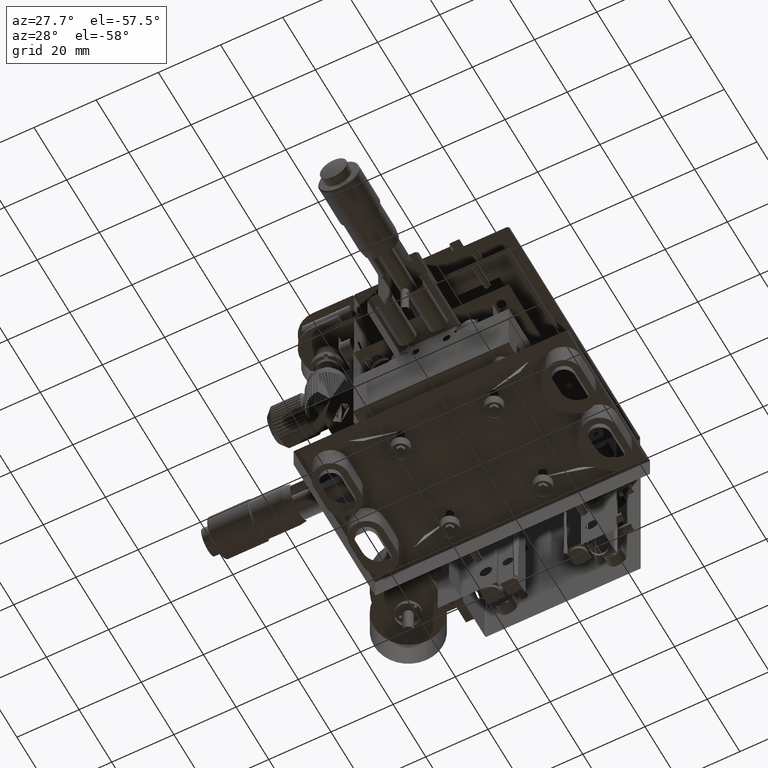
[diagram: clean part render]
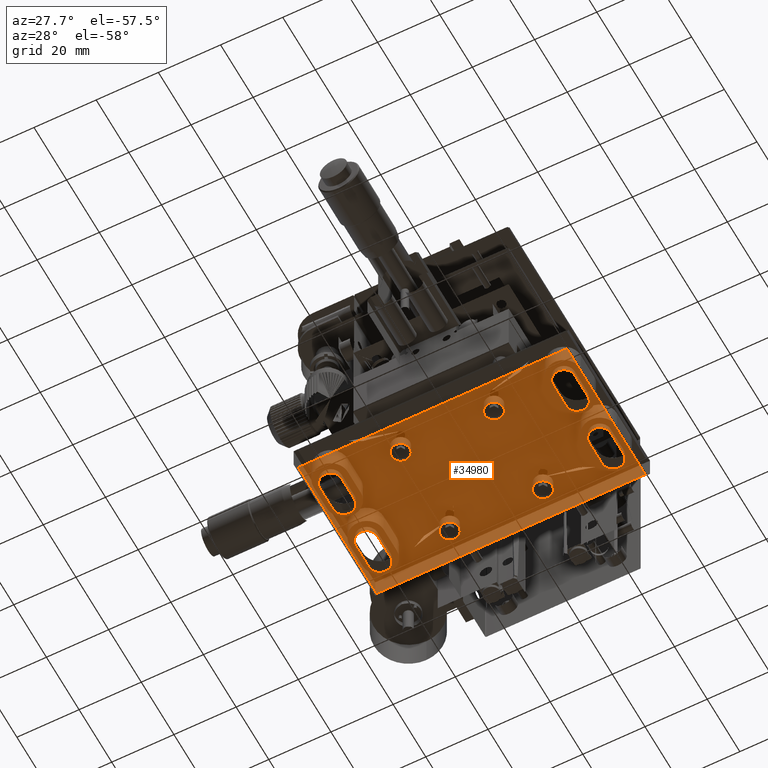
[diagram: same view with one face highlighted and labeled with its STEP entity id]
A machine part, auxiliary view. The second image highlights one B-rep face of the part: STEP entity #34980.
In plain terms, the highlighted face is a freeform B-spline surface patch.
Its self-contained STEP definition (entity closure, byte-faithful):
#55 = CARTESIAN_POINT ( 'NONE',  ( -21.29640644856136689, -14.99374703652354057, -4.500000000000000000 ) ) ;
#338 = CARTESIAN_POINT ( 'NONE',  ( -17.05377513740047135, 15.56881495829157380, -4.500000000000000000 ) ) ;
#371 = CARTESIAN_POINT ( 'NONE',  ( -16.83695524647980690, -14.10671455173036470, -4.500000000000000000 ) ) ;
#491 = CARTESIAN_POINT ( 'NONE',  ( 30.24058469547346206, 7.262136286117500283, -4.500000000000000000 ) ) ;
#664 = CARTESIAN_POINT ( 'NONE',  ( -20.23690821647150884, 14.48498896527074109, -4.500000000000000888 ) ) ;
#781 = B_SPLINE_CURVE_WITH_KNOTS ( 'NONE', 3,
 ( #21240, #2636, #37380, #12709, #54576, #13970, #48441, #48127, #9118, #54263, #53607, #14919, #59463, #23395, #28577, #43176, #58194, #64003 ),
 .UNSPECIFIED., .F., .F.,
 ( 4, 2, 2, 2, 2, 2, 2, 2, 4 ),
 ( 0.000000000000000000, 0.1249999999999998890, 0.2499999999999998890, 0.3749999999999998890, 0.4999999999999998890, 0.6249999999999998890, 0.7499999999999998890, 0.8749999999999998890, 1.000000000000000000 ),
 .UNSPECIFIED. ) ;
#2163 = ORIENTED_EDGE ( 'NONE', *, *, #22687, .T. ) ;
#2218 = ORIENTED_EDGE ( 'NONE', *, *, #22266, .T. ) ;
#2571 = CARTESIAN_POINT ( 'NONE',  ( -21.29641582465907845, -10.18854435466275099, -4.500000000000001776 ) ) ;
#2636 = CARTESIAN_POINT ( 'NONE',  ( 7.543628209608413293, 17.80665702433265452, -4.500000000000001776 ) ) ;
#2684 = CARTESIAN_POINT ( 'NONE',  ( -45.45637179039159292, -12.59115038357209926, -4.500000000000000000 ) ) ;
#2714 = CARTESIAN_POINT ( 'NONE',  ( -44.10308512069971698, 20.21189313059785775, -4.500000000000000000 ) ) ;
#2967 = CARTESIAN_POINT ( 'NONE',  ( -45.01235461151429007, -2.822987477641923704, -4.500000000000000000 ) ) ;
#3110 = VERTEX_POINT ( 'NONE', #7494 ) ;
#3206 = CARTESIAN_POINT ( 'NONE',  ( -20.97193088420871732, -9.971746090047332700, -4.500000000000000000 ) ) ;
#3214 = B_SPLINE_CURVE_WITH_KNOTS ( 'NONE', 3,
 ( #9356, #14523, #29134, #18431, #24584, #33999, #34332, #8381, #54182, #14202, #3829, #28173, #23619, #38247, #39199, #19385, #19711, #44395 ),
 .UNSPECIFIED., .F., .F.,
 ( 4, 2, 2, 2, 2, 2, 2, 2, 4 ),
 ( 0.000000000000000000, 0.1250000000000000000, 0.2500000000000000000, 0.3750000000000000000, 0.5000000000000000000, 0.6250000000000000000, 0.7500000000000000000, 0.8750000000000000000, 1.000000000000000000 ),
 .UNSPECIFIED. ) ;
#3607 = CARTESIAN_POINT ( 'NONE',  ( -40.18820888443311645, -1.535167562497468330, -4.500000000000001776 ) ) ;
#3608 = CARTESIAN_POINT ( 'NONE',  ( -43.72453469645750346, -15.64713320458383272, -4.500000000000001776 ) ) ;
#3702 = CARTESIAN_POINT ( 'NONE',  ( -39.80965846011498144, 6.605806102214055286, -4.500000000000001776 ) ) ;
#3725 = CARTESIAN_POINT ( 'NONE',  ( 29.54362820960840708, -4.127038853030037480, -4.500000000000000000 ) ) ;
#3829 = CARTESIAN_POINT ( 'NONE',  ( 33.95424933027374692, 20.82002352289435265, -4.500000000000000888 ) ) ;
#3892 = EDGE_CURVE ( 'NONE', #40954, #29541, #59284, .T. ) ;
#4035 = CARTESIAN_POINT ( 'NONE',  ( -44.75941530452961103, 7.262136286124892592, -4.500000000000001776 ) ) ;
#4350 = CARTESIAN_POINT ( 'NONE',  ( -41.49227626657508239, 5.908856246353873409, -4.500000000000000000 ) ) ;
#4372 = CARTESIAN_POINT ( 'NONE',  ( 32.13300201463312789, -1.179964226545440864, -4.500000000000001776 ) ) ;
#4447 = CARTESIAN_POINT ( 'NONE',  ( 7.924230547051965168, 15.89327451473756447, -4.499999999999999112 ) ) ;
#4689 = CARTESIAN_POINT ( 'NONE',  ( 32.57953268587812090, -1.091157013522839447, -4.500000000000000000 ) ) ;
#4925 = ORIENTED_EDGE ( 'NONE', *, *, #31252, .T. ) ;
#5009 = B_SPLINE_CURVE_WITH_KNOTS ( 'NONE', 1,
 ( #50263, #55444 ),
 .UNSPECIFIED., .F., .F.,
 ( 2, 2 ),
 ( 0.000000000000000000, 1.000000000000000000 ),
 .UNSPECIFIED. ) ;
#5080 = CARTESIAN_POINT ( 'NONE',  ( 13.54362820960841240, 17.01104220846116277, -4.500000000000000888 ) ) ;
#5605 = CARTESIAN_POINT ( 'NONE',  ( -17.05377513737335349, -14.43118504169189187, -4.500000000000000000 ) ) ;
#5619 = CARTESIAN_POINT ( 'NONE',  ( -45.45637179039159292, -4.591150383572129456, -4.500000000000000000 ) ) ;
#5720 = CARTESIAN_POINT ( 'NONE',  ( 31.27546530358669941, 6.352866795376248099, -4.500000000000001776 ) ) ;
#5800 = B_SPLINE_CURVE_WITH_KNOTS ( 'NONE', 1,
 ( #64168, #43993 ),
 .UNSPECIFIED., .F., .F.,
 ( 2, 2 ),
 ( 0.000000000000000000, 1.000000000000000000 ),
 .UNSPECIFIED. ) ;
#5819 = CARTESIAN_POINT ( 'NONE',  ( -47.65637179039159577, 26.40884961642790074, -4.500000000000000000 ) ) ;
#5945 = CARTESIAN_POINT ( 'NONE',  ( 36.54362820960839286, -12.59115038357209926, -4.500000000000000000 ) ) ;
#6044 = CARTESIAN_POINT ( 'NONE',  ( 29.54362820960841063, 8.944703433582350982, -4.500000000000001776 ) ) ;
#6076 = VERTEX_POINT ( 'NONE', #12566 ) ;
#6276 = CARTESIAN_POINT ( 'NONE',  ( 30.89692425543100285, -15.39418452152395034, -4.500000000000000000 ) ) ;
#7128 = CARTESIAN_POINT ( 'NONE',  ( 7.543628209608428392, -6.591150383572131233, -4.499999999999997335 ) ) ;
#7494 = CARTESIAN_POINT ( 'NONE',  ( 29.54362820960840352, 9.408849616427881202, -4.500000000000000000 ) ) ;
#7854 = CARTESIAN_POINT ( 'NONE',  ( -45.36756457832144918, -13.50176057085591452, -4.500000000000000888 ) ) ;
#8126 = CARTESIAN_POINT ( 'NONE',  ( -22.45637179039160358, 17.40884961642789719, -4.500000000000000000 ) ) ;
#8173 = CARTESIAN_POINT ( 'NONE',  ( -44.75940592845264376, -2.444446429487255212, -4.500000000000000000 ) ) ;
#8232 = CARTESIAN_POINT ( 'NONE',  ( 29.54362820960840352, -12.59115038357209926, -4.500000000000000000 ) ) ;
#8240 = CARTESIAN_POINT ( 'NONE',  ( -39.80966783625519412, 20.21188375439292528, -4.500000000000000888 ) ) ;
#8287 = CARTESIAN_POINT ( 'NONE',  ( 29.98764538858761242, -2.822987477489923958, -4.500000000000000000 ) ) ;
#8381 = CARTESIAN_POINT ( 'NONE',  ( 32.13300201465552419, 20.82003577346389278, -4.500000000000001776 ) ) ;
#8402 = CARTESIAN_POINT ( 'NONE',  ( -18.67583536425554058, -9.667289732464837471, -4.500000000000000000 ) ) ;
#8490 = CARTESIAN_POINT ( 'NONE',  ( -39.15333765238357699, -14.73785433768522957, -4.500000000000000000 ) ) ;
#8560 = CARTESIAN_POINT ( 'NONE',  ( -38.90040785074243956, 19.17702345582573642, -4.500000000000000000 ) ) ;
#8677 = CARTESIAN_POINT ( 'NONE',  ( 13.16304475350332659, 15.89328544830155998, -4.499999999999997335 ) ) ;
#8729 = CARTESIAN_POINT ( 'NONE',  ( -17.94080762233716086, -9.971733839611651717, -4.500000000000001776 ) ) ;
#8754 = CARTESIAN_POINT ( 'NONE',  ( -16.45637179039160714, 17.80669167660905217, -4.500000000000000888 ) ) ;
#8868 = VERTEX_POINT ( 'NONE', #5619 ) ;
#9118 = CARTESIAN_POINT ( 'NONE',  ( 10.14583680822025435, 20.40884298658655638, -4.499999999999999112 ) ) ;
#9131 = CARTESIAN_POINT ( 'NONE',  ( -39.15332827629382706, -2.444437053184417064, -4.500000000000001776 ) ) ;
#9213 = CARTESIAN_POINT ( 'NONE',  ( -45.45637179039159292, 17.40884961642789719, -4.500000000000000000 ) ) ;
#9253 = CARTESIAN_POINT ( 'NONE',  ( 33.95424933020238001, -1.179976477083802378, -4.500000000000000000 ) ) ;
#9321 = CARTESIAN_POINT ( 'NONE',  ( 12.38367224381515364, 15.00624358748539677, -4.500000000000000888 ) ) ;
#9356 = CARTESIAN_POINT ( 'NONE',  ( 29.54362820960840352, 17.40884961642789719, -4.500000000000000000 ) ) ;
#9927 = VERTEX_POINT ( 'NONE', #55250 ) ;
#10149 = VERTEX_POINT ( 'NONE', #64272 ) ;
#10283 = CARTESIAN_POINT ( 'NONE',  ( 33.95425440448980936, 5.997663459388793861, -4.500000000000000888 ) ) ;
#10486 = CARTESIAN_POINT ( 'NONE',  ( -21.85897781934116324, -14.43119441773999689, -4.500000000000001776 ) ) ;
#10926 = CARTESIAN_POINT ( 'NONE',  ( 36.54362820960839286, 9.408849616427881202, -4.500000000000000000 ) ) ;
#11024 = FACE_BOUND ( 'NONE', #28595, .T. ) ;
#11131 = EDGE_LOOP ( 'NONE', ( #34036, #55349 ) ) ;
#11306 = CARTESIAN_POINT ( 'NONE',  ( 7.543628209608430168, 17.40884961642789719, -4.500000000000000000 ) ) ;
#11486 = EDGE_CURVE ( 'NONE', #47768, #40954, #33404, .T. ) ;
#11851 = EDGE_CURVE ( 'NONE', #32700, #8868, #31047, .T. ) ;
#12147 = CARTESIAN_POINT ( 'NONE',  ( -38.45637179039159292, 17.40884961642789719, -4.500000000000000000 ) ) ;
#12368 = CARTESIAN_POINT ( 'NONE',  ( -22.07576945294807302, 15.89327451478361120, -4.500000000000000000 ) ) ;
#12566 = CARTESIAN_POINT ( 'NONE',  ( -38.45637179039159292, -12.59115038357209926, -4.500000000000000000 ) ) ;
#12709 = CARTESIAN_POINT ( 'NONE',  ( 7.924211665671169413, 18.92441378451401235, -4.500000000000000000 ) ) ;
#12792 = CARTESIAN_POINT ( 'NONE',  ( -39.15332827622221856, 19.55556294676873108, -4.500000000000001776 ) ) ;
#12824 = CARTESIAN_POINT ( 'NONE',  ( 36.54362820960839286, 17.40884961642789719, -4.500000000000000000 ) ) ;
#12928 = EDGE_LOOP ( 'NONE', ( #12929, #40892 ) ) ;
#12929 = ORIENTED_EDGE ( 'NONE', *, *, #49070, .T. ) ;
#13039 = CARTESIAN_POINT ( 'NONE',  ( -45.45637179039160003, -13.05529656643001069, -4.500000000000000888 ) ) ;
#13095 = VERTEX_POINT ( 'NONE', #44391 ) ;
#13378 = CARTESIAN_POINT ( 'NONE',  ( -22.45637179039160358, -12.59115038357209926, -4.500000000000000000 ) ) ;
#13420 = CARTESIAN_POINT ( 'NONE',  ( -42.42046731418577821, 20.90884298648952822, -4.500000000000000888 ) ) ;
#13469 = CARTESIAN_POINT ( 'NONE',  ( 36.09959214925758175, -2.822976544300350277, -4.500000000000000000 ) ) ;
#13670 = CARTESIAN_POINT ( 'NONE',  ( -45.45637179039160714, -4.127038853124053830, -4.500000000000000888 ) ) ;
#13765 = CARTESIAN_POINT ( 'NONE',  ( -38.54519788396154212, 8.498228495751504852, -4.500000000000000000 ) ) ;
#13852 = CARTESIAN_POINT ( 'NONE',  ( 8.141022180641238393, 15.56880558224580646, -4.500000000000001776 ) ) ;
#13970 = CARTESIAN_POINT ( 'NONE',  ( 8.703584175436875014, 19.81145564540345561, -4.500000000000000000 ) ) ;
#14042 = VERTEX_POINT ( 'NONE', #18442 ) ;
#14078 = CARTESIAN_POINT ( 'NONE',  ( -45.36756457832144918, 8.498239429156416946, -4.500000000000000888 ) ) ;
#14098 = CARTESIAN_POINT ( 'NONE',  ( 36.54362820960839286, -4.591150383572140115, -4.500000000000000000 ) ) ;
#14202 = CARTESIAN_POINT ( 'NONE',  ( 33.50772373337951393, 20.90885624636936058, -4.500000000000000000 ) ) ;
#14383 = CARTESIAN_POINT ( 'NONE',  ( -18.67583029012051909, -15.51502328513624995, -4.500000000000000000 ) ) ;
#14401 = CARTESIAN_POINT ( 'NONE',  ( -47.65637179039159577, 26.40884961642790074, -4.500000000000000000 ) ) ;
#14420 = CARTESIAN_POINT ( 'NONE',  ( 35.19033216380291407, -1.788116245621302669, -4.500000000000000000 ) ) ;
#14490 = CARTESIAN_POINT ( 'NONE',  ( 7.619748677097119227, 16.62832412392770465, -4.499999999999998224 ) ) ;
#14523 = CARTESIAN_POINT ( 'NONE',  ( 29.54362820960840352, 17.87296114695766036, -4.500000000000000000 ) ) ;
#14694 = CARTESIAN_POINT ( 'NONE',  ( -17.94081269647218946, -15.21055467707570763, -4.500000000000000000 ) ) ;
#14806 = CARTESIAN_POINT ( 'NONE',  ( 7.543628209608410629, 17.01100755629279604, -4.500000000000000888 ) ) ;
#14919 = CARTESIAN_POINT ( 'NONE',  ( 12.05919237778226005, 20.02826616029115669, -4.500000000000000000 ) ) ;
#15335 = CARTESIAN_POINT ( 'NONE',  ( 7.543628209608430168, -12.59115038357209926, -4.500000000000000000 ) ) ;
#15673 = CARTESIAN_POINT ( 'NONE',  ( 31.27546530358669941, -15.64713320458664292, -4.500000000000001776 ) ) ;
#15767 = CARTESIAN_POINT ( 'NONE',  ( 34.81178604128261611, 6.352879045887960707, -4.499999999999999112 ) ) ;
#15866 = VERTEX_POINT ( 'NONE', #39379 ) ;
#16203 = EDGE_LOOP ( 'NONE', ( #43481, #4925 ) ) ;
#16237 = B_SPLINE_CURVE_WITH_KNOTS ( 'NONE', 1,
 ( #34788, #50745 ),
 .UNSPECIFIED., .F., .F.,
 ( 2, 2 ),
 ( 0.000000000000000000, 1.000000000000000000 ),
 .UNSPECIFIED. ) ;
#16639 = CARTESIAN_POINT ( 'NONE',  ( 29.63243542167856148, -13.50176057081562675, -4.500000000000001776 ) ) ;
#16795 = EDGE_LOOP ( 'NONE', ( #51872, #24044, #39424, #42994 ) ) ;
#17164 = CARTESIAN_POINT ( 'NONE',  ( 13.54362820960840530, -6.591150383572131233, -4.499999999999997335 ) ) ;
#17499 = CARTESIAN_POINT ( 'NONE',  ( -22.45637179039160358, -12.59115038357209926, -4.500000000000000000 ) ) ;
#17585 = CARTESIAN_POINT ( 'NONE',  ( -42.42046731416365901, -1.091157013522843000, -4.500000000000000000 ) ) ;
#17651 = CARTESIAN_POINT ( 'NONE',  ( -45.45637179039159292, 17.40884961642789719, -4.500000000000000000 ) ) ;
#17898 = CARTESIAN_POINT ( 'NONE',  ( -42.86699798529045324, -1.179964226545439754, -4.500000000000001776 ) ) ;
#18156 = CARTESIAN_POINT ( 'NONE',  ( -22.07578833425392872, 18.92441378460268453, -4.500000000000000000 ) ) ;
#18214 = CARTESIAN_POINT ( 'NONE',  ( -38.45637179039164266, -13.05526191402021396, -4.500000000000000888 ) ) ;
#18340 = EDGE_CURVE ( 'NONE', #63636, #13095, #5800, .T. ) ;
#18431 = CARTESIAN_POINT ( 'NONE',  ( 29.98764538852158523, 19.17701252236309628, -4.500000000000000000 ) ) ;
#18442 = CARTESIAN_POINT ( 'NONE',  ( 36.54362820960839286, 17.40884961642789719, -4.500000000000000000 ) ) ;
#18475 = CARTESIAN_POINT ( 'NONE',  ( -22.45637179039157161, 17.80665702442479059, -4.500000000000000888 ) ) ;
#18593 = CARTESIAN_POINT ( 'NONE',  ( 29.54362820960840352, -4.591150383572140115, -4.500000000000000000 ) ) ;
#18622 = CARTESIAN_POINT ( 'NONE',  ( -42.86699291092346442, 5.997675709902789087, -4.500000000000000000 ) ) ;
#18690 = EDGE_CURVE ( 'NONE', #59496, #10149, #42932, .T. ) ;
#18716 = CARTESIAN_POINT ( 'NONE',  ( 7.543628209608430168, 17.40884961642789719, -4.500000000000000000 ) ) ;
#18789 = CARTESIAN_POINT ( 'NONE',  ( -17.61633713219125497, 19.81144626929454233, -4.500000000000000000 ) ) ;
#18974 = CARTESIAN_POINT ( 'NONE',  ( 36.54362820960839286, -12.59115038357209926, -4.500000000000000000 ) ) ;
#19035 = CARTESIAN_POINT ( 'NONE',  ( 13.54362820960839819, 17.40884961642789719, -4.500000000000000000 ) ) ;
#19166 = CARTESIAN_POINT ( 'NONE',  ( -40.18821395869026247, -15.64712095409962878, -4.500000000000000000 ) ) ;
#19385 = CARTESIAN_POINT ( 'NONE',  ( 36.45482099753822780, 18.31945980369316729, -4.500000000000000888 ) ) ;
#19558 = CARTESIAN_POINT ( 'NONE',  ( -20.23690821641724469, -15.51501103475176713, -4.500000000000000000 ) ) ;
#19600 = CARTESIAN_POINT ( 'NONE',  ( 29.63245430305016370, -3.680529263098749837, -4.500000000000000888 ) ) ;
#19711 = CARTESIAN_POINT ( 'NONE',  ( 36.54362820960839286, 17.87299579926722259, -4.500000000000000888 ) ) ;
#19782 = FACE_BOUND ( 'NONE', #12928, .T. ) ;
#19857 = CARTESIAN_POINT ( 'NONE',  ( 13.54362820960839819, -12.59115038357209926, -4.500000000000000000 ) ) ;
#19904 =( BOUNDED_CURVE ( )  B_SPLINE_CURVE ( 3, ( #37293, #27230, #61695, #41524 ),
 .UNSPECIFIED., .F., .F. ) 
 B_SPLINE_CURVE_WITH_KNOTS ( ( 4, 4 ),
 ( 0.000000000000000000, 1.000000000000000000 ),
 .UNSPECIFIED. ) 
 CURVE ( )  GEOMETRIC_REPRESENTATION_ITEM ( )  RATIONAL_B_SPLINE_CURVE ( ( 1.000000000000000000, 0.3333333333333329818, 0.3333333333333329818, 1.000000000000000000 ) ) 
 REPRESENTATION_ITEM ( '' )  );
#20117 = B_SPLINE_CURVE_WITH_KNOTS ( 'NONE', 1,
 ( #27420, #23511 ),
 .UNSPECIFIED., .F., .F.,
 ( 2, 2 ),
 ( 0.000000000000000000, 1.000000000000000000 ),
 .UNSPECIFIED. ) ;
#20168 = CARTESIAN_POINT ( 'NONE',  ( -16.45637179039160003, 17.40884961642789719, -4.500000000000000000 ) ) ;
#20219 = VERTEX_POINT ( 'NONE', #60287 ) ;
#20225 = CARTESIAN_POINT ( 'NONE',  ( 29.54362820960840708, -13.05529656638972469, -4.500000000000001776 ) ) ;
#20393 = EDGE_CURVE ( 'NONE', #36216, #14042, #3214, .T. ) ;
#20491 = CARTESIAN_POINT ( 'NONE',  ( -20.97193595850231773, 14.78943307251733508, -4.500000000000002665 ) ) ;
#20521 = CARTESIAN_POINT ( 'NONE',  ( -19.85416319174158417, -15.59115701340815896, -4.500000000000000000 ) ) ;
#20641 = CARTESIAN_POINT ( 'NONE',  ( 36.45480211608776955, 8.498228495860491449, -4.499999999999999112 ) ) ;
#20746 = FACE_BOUND ( 'NONE', #56031, .T. ) ;
#20844 = CARTESIAN_POINT ( 'NONE',  ( -22.45637179039160358, -12.59115038357209926, -4.500000000000000000 ) ) ;
#21240 = CARTESIAN_POINT ( 'NONE',  ( 7.543628209608430168, 17.40884961642789719, -4.500000000000000000 ) ) ;
#21827 = EDGE_CURVE ( 'NONE', #43019, #39849, #37930, .T. ) ;
#22249 = CARTESIAN_POINT ( 'NONE',  ( 36.54362820960839286, 9.408849616427881202, -4.500000000000000000 ) ) ;
#22266 = EDGE_CURVE ( 'NONE', #34610, #59496, #34696, .T. ) ;
#22311 = EDGE_CURVE ( 'NONE', #6076, #32700, #42406, .T. ) ;
#22389 = CARTESIAN_POINT ( 'NONE',  ( -19.05858038915702224, -9.591143753714893805, -4.500000000000001776 ) ) ;
#22450 = B_SPLINE_CURVE_WITH_KNOTS ( 'NONE', 3,
 ( #8126, #18475, #49036, #18156, #24301, #28852, #37973, #57831, #48714, #58780, #48078, #44109, #18789, #62992, #38291, #58152, #8754, #52623 ),
 .UNSPECIFIED., .F., .F.,
 ( 4, 2, 2, 2, 2, 2, 2, 2, 4 ),
 ( 0.000000000000000000, 0.1250000000000000000, 0.2500000000000000000, 0.3750000000000000000, 0.5000000000000000000, 0.6250000000000000000, 0.7500000000000000000, 0.8750000000000000000, 1.000000000000000000 ),
 .UNSPECIFIED. ) ;
#22687 = EDGE_CURVE ( 'NONE', #3110, #36216, #53236, .T. ) ;
#23007 = CARTESIAN_POINT ( 'NONE',  ( -16.45637179039160003, -12.59115038357209926, -4.500000000000000000 ) ) ;
#23097 = CARTESIAN_POINT ( 'NONE',  ( -44.10308512063639341, -1.788106869351199668, -4.500000000000001776 ) ) ;
#23395 = CARTESIAN_POINT ( 'NONE',  ( 12.94623423859311728, 19.24889365057649115, -4.500000000000000000 ) ) ;
#23408 = CARTESIAN_POINT ( 'NONE',  ( -38.54517900246180062, -3.680540196288325294, -4.500000000000000888 ) ) ;
#23461 = ORIENTED_EDGE ( 'NONE', *, *, #11851, .T. ) ;
#23477 = CARTESIAN_POINT ( 'NONE',  ( -38.45637179039164266, 17.87299579915975656, -4.500000000000000888 ) ) ;
#23511 = CARTESIAN_POINT ( 'NONE',  ( 38.74362820960839571, 26.40884961642790074, -4.500000000000000000 ) ) ;
#23619 = CARTESIAN_POINT ( 'NONE',  ( 35.19033216382477747, 20.21188375430741857, -4.500000000000000888 ) ) ;
#23909 = CARTESIAN_POINT ( 'NONE',  ( 8.703593551456279442, 15.00625296349067561, -4.500000000000000000 ) ) ;
#24037 = CARTESIAN_POINT ( 'NONE',  ( -42.86699291088123687, -16.00232429013941271, -4.500000000000000000 ) ) ;
#24044 = ORIENTED_EDGE ( 'NONE', *, *, #61696, .T. ) ;
#24134 = CARTESIAN_POINT ( 'NONE',  ( -45.45637179039159292, 9.408849616427870544, -4.500000000000000000 ) ) ;
#24161 = CARTESIAN_POINT ( 'NONE',  ( 34.81179111557005967, -1.535167562481502213, -4.500000000000001776 ) ) ;
#24229 = CARTESIAN_POINT ( 'NONE',  ( 10.94141961085577108, 14.40885624630628925, -4.499999999999999112 ) ) ;
#24301 = CARTESIAN_POINT ( 'NONE',  ( -21.85896844336291167, 19.24888427456185269, -4.500000000000000000 ) ) ;
#24431 = CARTESIAN_POINT ( 'NONE',  ( -22.07576945294807658, -14.10672548520575376, -4.500000000000000000 ) ) ;
#24471 = CARTESIAN_POINT ( 'NONE',  ( 33.50772373333867904, -1.091143753621402812, -4.500000000000001776 ) ) ;
#24584 = CARTESIAN_POINT ( 'NONE',  ( 30.24059407165414015, 19.55555357058871380, -4.500000000000000888 ) ) ;
#24752 = CARTESIAN_POINT ( 'NONE',  ( -16.45637179039160003, -12.59115038357209926, -4.500000000000000000 ) ) ;
#24870 = CARTESIAN_POINT ( 'NONE',  ( 10.14583680836100221, 14.40884298654946072, -4.500000000000000000 ) ) ;
#25290 = EDGE_CURVE ( 'NONE', #52095, #34610, #40504, .T. ) ;
#25295 = FACE_BOUND ( 'NONE', #16795, .T. ) ;
#25365 = CARTESIAN_POINT ( 'NONE',  ( -19.05858038914395181, 14.40885624630629280, -4.500000000000000000 ) ) ;
#25372 = ORIENTED_EDGE ( 'NONE', *, *, #36733, .T. ) ;
#25420 = CARTESIAN_POINT ( 'NONE',  ( 32.57953268563496607, -16.09115701347338856, -4.500000000000001776 ) ) ;
#25626 = B_SPLINE_CURVE_WITH_KNOTS ( 'NONE', 3,
 ( #5945, #30281, #41328, #44917, #55011, #30923, #25745, #60211, #40683, #25420, #50795, #15673, #6276, #35487, #55336, #16639, #20225, #26077 ),
 .UNSPECIFIED., .F., .F.,
 ( 4, 2, 2, 2, 2, 2, 2, 2, 4 ),
 ( 0.000000000000000000, 0.1250000000000000000, 0.2500000000000000000, 0.3750000000000000000, 0.5000000000000000000, 0.6250000000000000000, 0.7500000000000000000, 0.8750000000000000000, 1.000000000000000000 ),
 .UNSPECIFIED. ) ;
#25678 = VERTEX_POINT ( 'NONE', #55575 ) ;
#25745 = CARTESIAN_POINT ( 'NONE',  ( 34.81178604137218713, -15.64712095407489656, -4.500000000000000000 ) ) ;
#25793 = CARTESIAN_POINT ( 'NONE',  ( 29.54362820960840352, -12.59115038357209926, -4.500000000000000000 ) ) ;
#26077 = CARTESIAN_POINT ( 'NONE',  ( 29.54362820960840352, -12.59115038357209926, -4.500000000000000000 ) ) ;
#26238 = EDGE_CURVE ( 'NONE', #48194, #9927, #781, .T. ) ;
#27078 = CARTESIAN_POINT ( 'NONE',  ( 36.54362820960839286, -4.591150383572140115, -4.500000000000000000 ) ) ;
#27230 = CARTESIAN_POINT ( 'NONE',  ( 7.543628209608428392, -18.59115038357209926, -4.499999999999997335 ) ) ;
#27244 = CARTESIAN_POINT ( 'NONE',  ( -22.45637179039158227, -12.19334297556462765, -4.500000000000000888 ) ) ;
#27420 = CARTESIAN_POINT ( 'NONE',  ( 38.74362820960845255, -21.59115038357214900, -4.500000000000000000 ) ) ;
#27551 = CARTESIAN_POINT ( 'NONE',  ( -22.38023244157373881, -11.81061395748965914, -4.500000000000000000 ) ) ;
#27955 = CARTESIAN_POINT ( 'NONE',  ( -41.04575066979442255, -1.179976477067836482, -4.500000000000000000 ) ) ;
#28051 = CARTESIAN_POINT ( 'NONE',  ( -38.45637179039159292, -4.591150383572129456, -4.500000000000000000 ) ) ;
#28068 = CARTESIAN_POINT ( 'NONE',  ( 36.45482099753822780, -3.680540196288325294, -4.500000000000000888 ) ) ;
#28173 = CARTESIAN_POINT ( 'NONE',  ( 34.81179111549866434, 20.46483243754045844, -4.500000000000001776 ) ) ;
#28281 = CARTESIAN_POINT ( 'NONE',  ( -41.04574559553727653, -16.00233654062353494, -4.500000000000001776 ) ) ;
#28348 = CARTESIAN_POINT ( 'NONE',  ( -38.54517900246181483, 18.31945980358569770, -4.500000000000000888 ) ) ;
#28373 = CARTESIAN_POINT ( 'NONE',  ( -38.90038896924268386, 7.640686710548620475, -4.500000000000000000 ) ) ;
#28403 = CARTESIAN_POINT ( 'NONE',  ( 36.54362820960839286, -4.591150383572140115, -4.500000000000000000 ) ) ;
#28577 = CARTESIAN_POINT ( 'NONE',  ( 13.16302587216480902, 18.92442471812722005, -4.500000000000000888 ) ) ;
#28595 = EDGE_LOOP ( 'NONE', ( #23461, #25372, #50868, #57350 ) ) ;
#28686 = CARTESIAN_POINT ( 'NONE',  ( -42.42046731420812478, 5.908842986501871231, -4.500000000000000000 ) ) ;
#28779 = B_SPLINE_CURVE_WITH_KNOTS ( 'NONE', 3,
 ( #10926, #35258, #20641, #46314, #34937, #54785, #15767, #10283, #35582, #40453, #30050, #5720, #55429, #491, #55104, #50571, #6044, #40778 ),
 .UNSPECIFIED., .F., .F.,
 ( 4, 2, 2, 2, 2, 2, 2, 2, 4 ),
 ( 0.000000000000000000, 0.1250000000000001943, 0.2500000000000001665, 0.3750000000000001665, 0.5000000000000002220, 0.6250000000000002220, 0.7500000000000001110, 0.8750000000000001110, 1.000000000000000000 ),
 .UNSPECIFIED. ) ;
#28852 = CARTESIAN_POINT ( 'NONE',  ( -21.29641582453961490, 19.81145564541323978, -4.500000000000001776 ) ) ;
#29032 = CARTESIAN_POINT ( 'NONE',  ( 35.84667172371969457, -2.444437053217151323, -4.500000000000001776 ) ) ;
#29134 = CARTESIAN_POINT ( 'NONE',  ( 29.63245430311620154, 18.31947073704833429, -4.500000000000000888 ) ) ;
#29541 = VERTEX_POINT ( 'NONE', #32227 ) ;
#29573 = ORIENTED_EDGE ( 'NONE', *, *, #32659, .T. ) ;
#29907 = CARTESIAN_POINT ( 'NONE',  ( -16.53251113923560212, 16.62831319038503608, -4.499999999999999112 ) ) ;
#30050 = CARTESIAN_POINT ( 'NONE',  ( 32.13300708907446790, 5.997675709900506469, -4.500000000000000888 ) ) ;
#30147 = ORIENTED_EDGE ( 'NONE', *, *, #21827, .T. ) ;
#30281 = CARTESIAN_POINT ( 'NONE',  ( 36.54362820960839286, -13.05526191395301439, -4.500000000000000888 ) ) ;
#30308 = EDGE_CURVE ( 'NONE', #20219, #42660, #5009, .T. ) ;
#30510 = ORIENTED_EDGE ( 'NONE', *, *, #25290, .T. ) ;
#30689 = ORIENTED_EDGE ( 'NONE', *, *, #36563, .T. ) ;
#30923 = CARTESIAN_POINT ( 'NONE',  ( 35.19034153982342872, -15.39419389780020175, -4.500000000000000000 ) ) ;
#31047 = B_SPLINE_CURVE_WITH_KNOTS ( 'NONE', 1,
 ( #2684, #31907 ),
 .UNSPECIFIED., .F., .F.,
 ( 2, 2 ),
 ( 0.000000000000000000, 1.000000000000000000 ),
 .UNSPECIFIED. ) ;
#31169 = ORIENTED_EDGE ( 'NONE', *, *, #42956, .T. ) ;
#31252 = EDGE_CURVE ( 'NONE', #9927, #48194, #43617, .T. ) ;
#31348 = EDGE_CURVE ( 'NONE', #15866, #3110, #28779, .T. ) ;
#31907 = CARTESIAN_POINT ( 'NONE',  ( -45.45637179039159292, -4.591150383572129456, -4.500000000000000000 ) ) ;
#32227 = CARTESIAN_POINT ( 'NONE',  ( 36.54362820960839286, -12.59115038357209926, -4.500000000000000000 ) ) ;
#32482 = CARTESIAN_POINT ( 'NONE',  ( -22.45637179039160358, 17.40884961642789719, -4.500000000000000000 ) ) ;
#32659 = EDGE_CURVE ( 'NONE', #42660, #63636, #16237, .T. ) ;
#32700 = VERTEX_POINT ( 'NONE', #51073 ) ;
#32750 = EDGE_CURVE ( 'NONE', #55362, #25678, #47220, .T. ) ;
#32886 = CARTESIAN_POINT ( 'NONE',  ( -45.45637179039160003, 17.87296114697108251, -4.500000000000000888 ) ) ;
#33051 = CARTESIAN_POINT ( 'NONE',  ( -17.05376576146900192, -10.75110634933910703, -4.500000000000001776 ) ) ;
#33137 = CARTESIAN_POINT ( 'NONE',  ( -38.54519788395278823, -13.50177150423969508, -4.500000000000000000 ) ) ;
#33171 =( BOUNDED_CURVE ( )  B_SPLINE_CURVE ( 3, ( #47712, #17164, #7128, #36970 ),
 .UNSPECIFIED., .F., .F. ) 
 B_SPLINE_CURVE_WITH_KNOTS ( ( 4, 4 ),
 ( 0.000000000000000000, 1.000000000000000000 ),
 .UNSPECIFIED. ) 
 CURVE ( )  GEOMETRIC_REPRESENTATION_ITEM ( )  RATIONAL_B_SPLINE_CURVE ( ( 1.000000000000000000, 0.3333333333333329818, 0.3333333333333329818, 1.000000000000000000 ) ) 
 REPRESENTATION_ITEM ( '' )  );
#33228 = CARTESIAN_POINT ( 'NONE',  ( -38.45637179039159292, 9.408849616427870544, -4.500000000000000000 ) ) ;
#33302 = CARTESIAN_POINT ( 'NONE',  ( 29.54362820960840352, 9.408849616427881202, -4.500000000000000000 ) ) ;
#33404 = B_SPLINE_CURVE_WITH_KNOTS ( 'NONE', 3,
 ( #47609, #3725, #19600, #8287, #33902, #38464, #58322, #4372, #4689, #24471, #9253, #24161, #14420, #29032, #13469, #28068, #44285, #14098 ),
 .UNSPECIFIED., .F., .F.,
 ( 4, 2, 2, 2, 2, 2, 2, 2, 4 ),
 ( 0.000000000000000000, 0.1250000000000000000, 0.2500000000000000000, 0.3750000000000000000, 0.5000000000000000000, 0.6250000000000000000, 0.7500000000000000000, 0.8750000000000000000, 1.000000000000000000 ),
 .UNSPECIFIED. ) ;
#33454 = CARTESIAN_POINT ( 'NONE',  ( -45.45637179039159292, -4.591150383572129456, -4.500000000000000000 ) ) ;
#33777 = CARTESIAN_POINT ( 'NONE',  ( -45.36754569684794802, -3.680529262946750979, -4.500000000000000000 ) ) ;
#33836 = CARTESIAN_POINT ( 'NONE',  ( -45.45637179039159292, 9.408849616427870544, -4.500000000000000000 ) ) ;
#33879 = CARTESIAN_POINT ( 'NONE',  ( -45.45637179039160003, 8.944703433582350982, -4.500000000000000888 ) ) ;
#33902 = CARTESIAN_POINT ( 'NONE',  ( 30.24059407151587564, -2.444446429468631443, -4.500000000000000888 ) ) ;
#33999 = CARTESIAN_POINT ( 'NONE',  ( 30.89691487925681557, 20.21189313057293546, -4.500000000000000000 ) ) ;
#34036 = ORIENTED_EDGE ( 'NONE', *, *, #62665, .F. ) ;
#34332 = CARTESIAN_POINT ( 'NONE',  ( 31.27547037800560048, 20.46482018697091121, -4.500000000000000888 ) ) ;
#34610 = VERTEX_POINT ( 'NONE', #33836 ) ;
#34696 = B_SPLINE_CURVE_WITH_KNOTS ( 'NONE', 1,
 ( #42572, #42884 ),
 .UNSPECIFIED., .F., .F.,
 ( 2, 2 ),
 ( 0.000000000000000000, 1.000000000000000000 ),
 .UNSPECIFIED. ) ;
#34788 = CARTESIAN_POINT ( 'NONE',  ( -47.65637179039159577, 26.40884961642790074, -4.500000000000000000 ) ) ;
#34937 = CARTESIAN_POINT ( 'NONE',  ( 35.84666234772031856, 7.262145662358890696, -4.500000000000000000 ) ) ;
#34980 = ADVANCED_FACE ( 'NONE', ( #25295, #35045, #55532, #60410, #36009, #20746, #19782, #11024, #45780 ), #43205, .T. ) ;
#35045 = FACE_BOUND ( 'NONE', #61303, .T. ) ;
#35258 = CARTESIAN_POINT ( 'NONE',  ( 36.54362820960839997, 8.944738085982095299, -4.500000000000000000 ) ) ;
#35435 = CARTESIAN_POINT ( 'NONE',  ( -21.29640644857634513, 15.00625296352325400, -4.500000000000000888 ) ) ;
#35462 = CARTESIAN_POINT ( 'NONE',  ( -19.05858038904159457, -15.59114375373622430, -4.500000000000000000 ) ) ;
#35487 = CARTESIAN_POINT ( 'NONE',  ( 30.24058469547995287, -14.73786371392606043, -4.500000000000000000 ) ) ;
#35516 = EDGE_LOOP ( 'NONE', ( #60782, #62085, #29573, #50269 ) ) ;
#35582 = CARTESIAN_POINT ( 'NONE',  ( 33.50772373340268473, 5.908856246366237741, -4.500000000000000000 ) ) ;
#35751 = EDGE_CURVE ( 'NONE', #62959, #47768, #54616, .T. ) ;
#36009 = FACE_BOUND ( 'NONE', #16203, .T. ) ;
#36216 = VERTEX_POINT ( 'NONE', #41781 ) ;
#36555 = CARTESIAN_POINT ( 'NONE',  ( -38.45637179039159292, -4.591150383572129456, -4.500000000000000000 ) ) ;
#36563 = EDGE_CURVE ( 'NONE', #39849, #43019, #40427, .T. ) ;
#36733 = EDGE_CURVE ( 'NONE', #8868, #44766, #38931, .T. ) ;
#36819 = CARTESIAN_POINT ( 'NONE',  ( -41.49227626659742896, 20.90885624636626616, -4.500000000000000000 ) ) ;
#36970 = CARTESIAN_POINT ( 'NONE',  ( 7.543628209608430168, -12.59115038357209926, -4.500000000000000000 ) ) ;
#37040 = CARTESIAN_POINT ( 'NONE',  ( -22.38025132290287900, 16.62832412388166148, -4.499999999999999112 ) ) ;
#37138 = CARTESIAN_POINT ( 'NONE',  ( -42.86699798532028893, 20.82003577346698364, -4.500000000000001776 ) ) ;
#37293 = CARTESIAN_POINT ( 'NONE',  ( 7.543628209608430168, -12.59115038357209926, -4.500000000000000000 ) ) ;
#37306 = CARTESIAN_POINT ( 'NONE',  ( -21.85896844324345167, -10.75111572536214410, -4.500000000000000000 ) ) ;
#37380 = CARTESIAN_POINT ( 'NONE',  ( 7.619767558477920311, 18.18938604253231972, -4.500000000000000000 ) ) ;
#37708 = CARTESIAN_POINT ( 'NONE',  ( -38.45637179039164266, -4.127004200714264215, -4.500000000000000888 ) ) ;
#37880 = CARTESIAN_POINT ( 'NONE',  ( 29.54362820960840352, 17.40884961642789719, -4.500000000000000000 ) ) ;
#37930 = B_SPLINE_CURVE_WITH_KNOTS ( 'NONE', 3,
 ( #17499, #27244, #27551, #43108, #37306, #2571, #3206, #57486, #42173, #22389, #8402, #8729, #57802, #33051, #47091, #47728, #38265, #23007 ),
 .UNSPECIFIED., .F., .F.,
 ( 4, 2, 2, 2, 2, 2, 2, 2, 4 ),
 ( 0.000000000000000000, 0.1250000000000000000, 0.2500000000000000000, 0.3750000000000000000, 0.5000000000000000000, 0.6250000000000000000, 0.7500000000000000000, 0.8750000000000000000, 1.000000000000000000 ),
 .UNSPECIFIED. ) ;
#37973 = CARTESIAN_POINT ( 'NONE',  ( -20.97193088426632102, 20.02825390995533894, -4.500000000000000000 ) ) ;
#38031 = CARTESIAN_POINT ( 'NONE',  ( -38.45637179039159292, -4.591150383572129456, -4.500000000000000000 ) ) ;
#38052 = CARTESIAN_POINT ( 'NONE',  ( -38.45637179039159292, 9.408849616427870544, -4.500000000000000000 ) ) ;
#38247 = CARTESIAN_POINT ( 'NONE',  ( 35.84667172369783827, 19.55556294685423424, -4.500000000000001776 ) ) ;
#38265 = CARTESIAN_POINT ( 'NONE',  ( -16.45637179039160714, -12.19330832338037496, -4.500000000000000888 ) ) ;
#38291 = CARTESIAN_POINT ( 'NONE',  ( -16.83697412783510927, 18.92442471807219917, -4.500000000000000000 ) ) ;
#38352 = CARTESIAN_POINT ( 'NONE',  ( -44.75941530452085715, -14.73786371388382221, -4.500000000000001776 ) ) ;
#38439 = CARTESIAN_POINT ( 'NONE',  ( -43.72453469641529011, 6.352866795373922848, -4.500000000000001776 ) ) ;
#38464 = CARTESIAN_POINT ( 'NONE',  ( 30.89691487939508363, -1.788106869369822771, -4.500000000000001776 ) ) ;
#38665 = CARTESIAN_POINT ( 'NONE',  ( -43.72452962204830129, -1.535179813019861950, -4.500000000000000000 ) ) ;
#38666 = CARTESIAN_POINT ( 'NONE',  ( -42.42046731426787431, -16.09115701349809058, -4.500000000000001776 ) ) ;
#38848 = CARTESIAN_POINT ( 'NONE',  ( 12.05918730339359790, 14.78944532288191027, -4.500000000000000000 ) ) ;
#38931 = B_SPLINE_CURVE_WITH_KNOTS ( 'NONE', 3,
 ( #33454, #13670, #33777, #2967, #8173, #23097, #38665, #17898, #17585, #57245, #27955, #3607, #53619, #9131, #52991, #23408, #37708, #38031 ),
 .UNSPECIFIED., .F., .F.,
 ( 4, 2, 2, 2, 2, 2, 2, 2, 4 ),
 ( 0.000000000000000000, 0.1250000000000000000, 0.2500000000000000000, 0.3750000000000000000, 0.5000000000000000000, 0.6250000000000000000, 0.7500000000000000000, 0.8750000000000000000, 1.000000000000000000 ),
 .UNSPECIFIED. ) ;
#39169 = CARTESIAN_POINT ( 'NONE',  ( 13.46748886078112939, 16.62831319036370914, -4.499999999999999112 ) ) ;
#39199 = CARTESIAN_POINT ( 'NONE',  ( 36.09959214925757465, 19.17702345571825973, -4.500000000000000000 ) ) ;
#39374 = CARTESIAN_POINT ( 'NONE',  ( -20.97193595855657478, -15.21056692746018868, -4.500000000000000000 ) ) ;
#39379 = CARTESIAN_POINT ( 'NONE',  ( 36.54362820960839286, 9.408849616427881202, -4.500000000000000000 ) ) ;
#39413 = ORIENTED_EDGE ( 'NONE', *, *, #48650, .T. ) ;
#39424 = ORIENTED_EDGE ( 'NONE', *, *, #35751, .T. ) ;
#39849 = VERTEX_POINT ( 'NONE', #40154 ) ;
#39986 = CARTESIAN_POINT ( 'NONE',  ( -17.94081269658732580, 14.78944532288190850, -4.500000000000000000 ) ) ;
#40154 = CARTESIAN_POINT ( 'NONE',  ( -16.45637179039160003, -12.59115038357209926, -4.500000000000000000 ) ) ;
#40427 = B_SPLINE_CURVE_WITH_KNOTS ( 'NONE', 3,
 ( #24752, #59868, #54351, #371, #5605, #44565, #14694, #14383, #35462, #20521, #19558, #39374, #55, #10486, #24431, #44243, #54024, #20844 ),
 .UNSPECIFIED., .F., .F.,
 ( 4, 2, 2, 2, 2, 2, 2, 2, 4 ),
 ( 0.000000000000000000, 0.1250000000000000000, 0.2500000000000000000, 0.3750000000000000000, 0.5000000000000000000, 0.6250000000000000000, 0.7500000000000000000, 0.8750000000000000000, 1.000000000000000000 ),
 .UNSPECIFIED. ) ;
#40453 = CARTESIAN_POINT ( 'NONE',  ( 32.57953268581410811, 5.908842986489500682, -4.499999999999998224 ) ) ;
#40504 = B_SPLINE_CURVE_WITH_KNOTS ( 'NONE', 3,
 ( #33228, #48865, #13765, #28373, #48235, #3702, #43292, #63137, #4350, #28686, #18622, #38439, #53396, #4035, #58618, #14078, #33879, #24134 ),
 .UNSPECIFIED., .F., .F.,
 ( 4, 2, 2, 2, 2, 2, 2, 2, 4 ),
 ( 0.000000000000000000, 0.1250000000000000000, 0.2500000000000000000, 0.3750000000000000000, 0.5000000000000000000, 0.6250000000000000000, 0.7500000000000000000, 0.8750000000000000000, 1.000000000000000000 ),
 .UNSPECIFIED. ) ;
#40539 = EDGE_LOOP ( 'NONE', ( #63118, #39413, #57707, #2163 ) ) ;
#40683 = CARTESIAN_POINT ( 'NONE',  ( 33.50772373358181966, -16.09114375367082417, -4.500000000000000000 ) ) ;
#40778 = CARTESIAN_POINT ( 'NONE',  ( 29.54362820960840352, 9.408849616427881202, -4.500000000000000000 ) ) ;
#40892 = ORIENTED_EDGE ( 'NONE', *, *, #32750, .T. ) ;
#40954 = VERTEX_POINT ( 'NONE', #27078 ) ;
#41328 = CARTESIAN_POINT ( 'NONE',  ( 36.45480211603316434, -13.50177150420643990, -4.500000000000000000 ) ) ;
#41524 = CARTESIAN_POINT ( 'NONE',  ( 13.54362820960839819, -12.59115038357209926, -4.500000000000000000 ) ) ;
#41781 = CARTESIAN_POINT ( 'NONE',  ( 29.54362820960840352, 17.40884961642789719, -4.500000000000000000 ) ) ;
#42005 = CARTESIAN_POINT ( 'NONE',  ( -44.75940592838934151, 19.55555357056379506, -4.500000000000000000 ) ) ;
#42173 = CARTESIAN_POINT ( 'NONE',  ( -19.85416319162616716, -9.591157013429455702, -4.500000000000000000 ) ) ;
#42406 = B_SPLINE_CURVE_WITH_KNOTS ( 'NONE', 3,
 ( #62735, #18214, #33137, #52992, #8490, #62423, #19166, #28281, #48140, #38666, #24037, #3608, #43194, #38352, #53620, #7854, #13039, #63050 ),
 .UNSPECIFIED., .F., .F.,
 ( 4, 2, 2, 2, 2, 2, 2, 2, 4 ),
 ( 0.000000000000000000, 0.1250000000000000000, 0.2500000000000000000, 0.3750000000000000000, 0.5000000000000000000, 0.6250000000000000000, 0.7500000000000000000, 0.8750000000000000000, 1.000000000000000000 ),
 .UNSPECIFIED. ) ;
#42572 = CARTESIAN_POINT ( 'NONE',  ( -45.45637179039159292, 9.408849616427870544, -4.500000000000000000 ) ) ;
#42581 = EDGE_CURVE ( 'NONE', #44766, #6076, #61719, .T. ) ;
#42660 = VERTEX_POINT ( 'NONE', #14401 ) ;
#42884 = CARTESIAN_POINT ( 'NONE',  ( -45.45637179039159292, 17.40884961642789719, -4.500000000000000000 ) ) ;
#42932 = B_SPLINE_CURVE_WITH_KNOTS ( 'NONE', 3,
 ( #17651, #32886, #47239, #57954, #42005, #2714, #61856, #37138, #13420, #36819, #53058, #56672, #8240, #12792, #8560, #28348, #23477, #12147 ),
 .UNSPECIFIED., .F., .F.,
 ( 4, 2, 2, 2, 2, 2, 2, 2, 4 ),
 ( 0.000000000000000000, 0.1250000000000000000, 0.2500000000000000000, 0.3750000000000000000, 0.5000000000000000000, 0.6250000000000000000, 0.7500000000000000000, 0.8750000000000000000, 1.000000000000000000 ),
 .UNSPECIFIED. ) ;
#42956 = EDGE_CURVE ( 'NONE', #10149, #52095, #60904, .T. ) ;
#42994 = ORIENTED_EDGE ( 'NONE', *, *, #11486, .T. ) ;
#43019 = VERTEX_POINT ( 'NONE', #13378 ) ;
#43108 = CARTESIAN_POINT ( 'NONE',  ( -22.07578833427721321, -11.07558621546398747, -4.500000000000000000 ) ) ;
#43176 = CARTESIAN_POINT ( 'NONE',  ( 13.46750774211965584, 18.18937510891912268, -4.500000000000000888 ) ) ;
#43194 = CARTESIAN_POINT ( 'NONE',  ( -44.10307574456818713, -15.39418452156619388, -4.500000000000000000 ) ) ;
#43205 = B_SPLINE_SURFACE_WITH_KNOTS ( 'NONE', 1, 1, ( 
 ( #50352, #45120 ),
 ( #5819, #50676 ) ),
 .UNSPECIFIED., .F., .F., .F.,
 ( 2, 2 ),
 ( 2, 2 ),
 ( 0.000000000000000000, 1.000000000000000000 ),
 ( 0.000000000000000000, 1.000000000000000000 ),
 .UNSPECIFIED. ) ;
#43292 = CARTESIAN_POINT ( 'NONE',  ( -40.18821395866041968, 6.352879045900329480, -4.500000000000000000 ) ) ;
#43481 = ORIENTED_EDGE ( 'NONE', *, *, #26238, .T. ) ;
#43617 = B_SPLINE_CURVE_WITH_KNOTS ( 'NONE', 3,
 ( #19035, #5080, #39169, #8677, #48961, #9321, #38848, #44680, #24229, #24870, #49283, #59027, #23909, #13852, #4447, #14490, #14806, #18716 ),
 .UNSPECIFIED., .F., .F.,
 ( 4, 2, 2, 2, 2, 2, 2, 2, 4 ),
 ( 0.000000000000000000, 0.1249999999999996947, 0.2499999999999993894, 0.3749999999999994449, 0.4999999999999995559, 0.6249999999999995559, 0.7499999999999996669, 0.8749999999999998890, 1.000000000000000000 ),
 .UNSPECIFIED. ) ;
#43993 = CARTESIAN_POINT ( 'NONE',  ( 38.74362820960845255, -21.59115038357214900, -4.500000000000000000 ) ) ;
#44109 = CARTESIAN_POINT ( 'NONE',  ( -17.94080762232811921, 20.02826616036341534, -4.500000000000001776 ) ) ;
#44243 = CARTESIAN_POINT ( 'NONE',  ( -22.38025132290287900, -13.37167587612895581, -4.500000000000000888 ) ) ;
#44285 = CARTESIAN_POINT ( 'NONE',  ( 36.54362820960839286, -4.127004200714264215, -4.500000000000000888 ) ) ;
#44391 = CARTESIAN_POINT ( 'NONE',  ( 38.74362820960845255, -21.59115038357214900, -4.500000000000000000 ) ) ;
#44395 = CARTESIAN_POINT ( 'NONE',  ( 36.54362820960839286, 17.40884961642789719, -4.500000000000000000 ) ) ;
#44565 = CARTESIAN_POINT ( 'NONE',  ( -17.61632775629065151, -14.99375641257164204, -4.500000000000000000 ) ) ;
#44680 = CARTESIAN_POINT ( 'NONE',  ( 11.32416971001374684, 14.48497671490616234, -4.499999999999999112 ) ) ;
#44766 = VERTEX_POINT ( 'NONE', #36555 ) ;
#44917 = CARTESIAN_POINT ( 'NONE',  ( 36.09961103076262390, -14.35931328949335040, -4.500000000000000000 ) ) ;
#45120 = CARTESIAN_POINT ( 'NONE',  ( 38.74362820960839571, -21.59115038357220229, -4.500000000000000000 ) ) ;
#45189 = CARTESIAN_POINT ( 'NONE',  ( -19.85416319163924115, 14.40884298654946249, -4.500000000000002665 ) ) ;
#45780 = FACE_OUTER_BOUND ( 'NONE', #35516, .T. ) ;
#46314 = CARTESIAN_POINT ( 'NONE',  ( 36.09961103070801158, 7.640686710439624107, -4.499999999999999112 ) ) ;
#46757 = CARTESIAN_POINT ( 'NONE',  ( 29.54362820960840352, -4.591150383572140115, -4.500000000000000000 ) ) ;
#47091 = CARTESIAN_POINT ( 'NONE',  ( -16.83697412783510572, -11.07557528193838969, -4.500000000000000000 ) ) ;
#47138 = CARTESIAN_POINT ( 'NONE',  ( -38.45637179039159292, 9.408849616427870544, -4.500000000000000000 ) ) ;
#47220 = B_SPLINE_CURVE_WITH_KNOTS ( 'NONE', 3,
 ( #20168, #59519, #29907, #49774, #338, #50096, #39986, #54957, #25365, #45189, #664, #20491, #35435, #52647, #12368, #37040, #57536, #32482 ),
 .UNSPECIFIED., .F., .F.,
 ( 4, 2, 2, 2, 2, 2, 2, 2, 4 ),
 ( 0.000000000000000000, 0.1249999999999998890, 0.2499999999999997780, 0.3749999999999996669, 0.4999999999999995559, 0.6249999999999994449, 0.7499999999999993339, 0.8749999999999996669, 1.000000000000000000 ),
 .UNSPECIFIED. ) ;
#47239 = CARTESIAN_POINT ( 'NONE',  ( -45.36754569690646832, 18.31947073700716189, -4.500000000000000000 ) ) ;
#47265 = CARTESIAN_POINT ( 'NONE',  ( -38.45637179039159292, -12.59115038357209926, -4.500000000000000000 ) ) ;
#47609 = CARTESIAN_POINT ( 'NONE',  ( 29.54362820960840352, -4.591150383572140115, -4.500000000000000000 ) ) ;
#47712 = CARTESIAN_POINT ( 'NONE',  ( 13.54362820960839819, -12.59115038357209926, -4.500000000000000000 ) ) ;
#47728 = CARTESIAN_POINT ( 'NONE',  ( -16.53249225788030685, -11.81062489101525514, -4.500000000000000888 ) ) ;
#47768 = VERTEX_POINT ( 'NONE', #46757 ) ;
#48078 = CARTESIAN_POINT ( 'NONE',  ( -18.67583536426458579, 20.33271026756010968, -4.500000000000000000 ) ) ;
#48127 = CARTESIAN_POINT ( 'NONE',  ( 9.763086709337311930, 20.33272251798670283, -4.500000000000000000 ) ) ;
#48140 = CARTESIAN_POINT ( 'NONE',  ( -41.49227626651534706, -16.09114375364611860, -4.500000000000000000 ) ) ;
#48194 = VERTEX_POINT ( 'NONE', #11306 ) ;
#48235 = CARTESIAN_POINT ( 'NONE',  ( -39.15333765236244545, 7.262145662335851348, -4.500000000000000000 ) ) ;
#48441 = CARTESIAN_POINT ( 'NONE',  ( 9.028069115688994728, 20.02825390993673338, -4.500000000000000888 ) ) ;
#48650 = EDGE_CURVE ( 'NONE', #14042, #15866, #63590, .T. ) ;
#48705 = EDGE_CURVE ( 'NONE', #13095, #20219, #20117, .T. ) ;
#48714 = CARTESIAN_POINT ( 'NONE',  ( -19.85416319167098109, 20.40884298656799345, -4.500000000000000000 ) ) ;
#48865 = CARTESIAN_POINT ( 'NONE',  ( -38.45637179039164266, 8.944738085992158361, -4.500000000000000888 ) ) ;
#48961 = CARTESIAN_POINT ( 'NONE',  ( 12.94622486252089111, 15.56881495825109063, -4.500000000000000888 ) ) ;
#49036 = CARTESIAN_POINT ( 'NONE',  ( -22.38023244159700553, 18.18938604244365109, -4.500000000000000000 ) ) ;
#49070 = EDGE_CURVE ( 'NONE', #25678, #55362, #22450, .T. ) ;
#49283 = CARTESIAN_POINT ( 'NONE',  ( 9.763091783528381029, 14.48498896527090452, -4.500000000000000000 ) ) ;
#49774 = CARTESIAN_POINT ( 'NONE',  ( -16.83695524647981401, 15.89328544828023659, -4.499999999999998224 ) ) ;
#50096 = CARTESIAN_POINT ( 'NONE',  ( -17.61632775626353009, 15.00624358744491893, -4.500000000000001776 ) ) ;
#50263 = CARTESIAN_POINT ( 'NONE',  ( 38.74362820960839571, 26.40884961642790074, -4.500000000000000000 ) ) ;
#50269 = ORIENTED_EDGE ( 'NONE', *, *, #18340, .T. ) ;
#50352 = CARTESIAN_POINT ( 'NONE',  ( 38.74362820960839571, 26.40884961642790074, -4.500000000000000000 ) ) ;
#50571 = CARTESIAN_POINT ( 'NONE',  ( 29.63243542167855793, 8.498239429156420499, -4.500000000000001776 ) ) ;
#50676 = CARTESIAN_POINT ( 'NONE',  ( -47.65637179039159577, -21.59115038357220229, -4.500000000000000000 ) ) ;
#50745 = CARTESIAN_POINT ( 'NONE',  ( -47.65637179039159577, -21.59115038357214900, -4.500000000000000000 ) ) ;
#50795 = CARTESIAN_POINT ( 'NONE',  ( 32.13300708907446079, -16.00232429013652435, -4.500000000000000000 ) ) ;
#50868 = ORIENTED_EDGE ( 'NONE', *, *, #42581, .T. ) ;
#51073 = CARTESIAN_POINT ( 'NONE',  ( -45.45637179039159292, -12.59115038357209926, -4.500000000000000000 ) ) ;
#51872 = ORIENTED_EDGE ( 'NONE', *, *, #3892, .T. ) ;
#52095 = VERTEX_POINT ( 'NONE', #47138 ) ;
#52623 = CARTESIAN_POINT ( 'NONE',  ( -16.45637179039160003, 17.40884961642789719, -4.500000000000000000 ) ) ;
#52647 = CARTESIAN_POINT ( 'NONE',  ( -21.85897781932619210, 15.56880558221323518, -4.499999999999999112 ) ) ;
#52991 = CARTESIAN_POINT ( 'NONE',  ( -38.90040785074242535, -2.822976544300350277, -4.500000000000000000 ) ) ;
#52992 = CARTESIAN_POINT ( 'NONE',  ( -38.90038896925142353, -14.35931328946010055, -4.500000000000000000 ) ) ;
#53058 = CARTESIAN_POINT ( 'NONE',  ( -41.04575066974672382, 20.82002352290927050, -4.500000000000000888 ) ) ;
#53236 = B_SPLINE_CURVE_WITH_KNOTS ( 'NONE', 1,
 ( #33302, #37880 ),
 .UNSPECIFIED., .F., .F.,
 ( 2, 2 ),
 ( 0.000000000000000000, 1.000000000000000000 ),
 .UNSPECIFIED. ) ;
#53396 = CARTESIAN_POINT ( 'NONE',  ( -44.10307574455943325, 6.605815478425015819, -4.500000000000000000 ) ) ;
#53607 = CARTESIAN_POINT ( 'NONE',  ( 11.32416463562507758, 20.33271026763229017, -4.500000000000000888 ) ) ;
#53619 = CARTESIAN_POINT ( 'NONE',  ( -39.80966783618361404, -1.788116245654037595, -4.500000000000000000 ) ) ;
#53620 = CARTESIAN_POINT ( 'NONE',  ( -45.01233573004079602, -14.35932422284388466, -4.500000000000000000 ) ) ;
#54024 = CARTESIAN_POINT ( 'NONE',  ( -22.45637179039157161, -12.98899244376390172, -4.500000000000000888 ) ) ;
#54182 = CARTESIAN_POINT ( 'NONE',  ( 32.57953268583727890, 20.90884298648643735, -4.500000000000000888 ) ) ;
#54263 = CARTESIAN_POINT ( 'NONE',  ( 10.94141961099651716, 20.40885624626922379, -4.499999999999999112 ) ) ;
#54293 = CARTESIAN_POINT ( 'NONE',  ( -38.45637179039159292, 17.40884961642789719, -4.500000000000000000 ) ) ;
#54351 = CARTESIAN_POINT ( 'NONE',  ( -16.53251113923560212, -13.37168680960434664, -4.500000000000000000 ) ) ;
#54576 = CARTESIAN_POINT ( 'NONE',  ( 8.141031556660635715, 19.24888427457157292, -4.499999999999999112 ) ) ;
#54616 = B_SPLINE_CURVE_WITH_KNOTS ( 'NONE', 1,
 ( #8232, #18593 ),
 .UNSPECIFIED., .F., .F.,
 ( 2, 2 ),
 ( 0.000000000000000000, 1.000000000000000000 ),
 .UNSPECIFIED. ) ;
#54785 = CARTESIAN_POINT ( 'NONE',  ( 35.19034153980231139, 6.605806102191018603, -4.500000000000000888 ) ) ;
#54957 = CARTESIAN_POINT ( 'NONE',  ( -18.67583029000537564, 14.48497671490616767, -4.500000000000001776 ) ) ;
#55011 = CARTESIAN_POINT ( 'NONE',  ( 35.84666234769918702, -14.73785433764980191, -4.500000000000000000 ) ) ;
#55104 = CARTESIAN_POINT ( 'NONE',  ( 29.98766426995920753, 7.640675777143710157, -4.500000000000000888 ) ) ;
#55250 = CARTESIAN_POINT ( 'NONE',  ( 13.54362820960839819, 17.40884961642789719, -4.500000000000000000 ) ) ;
#55336 = CARTESIAN_POINT ( 'NONE',  ( 29.98766426995921819, -14.35932422288417243, -4.500000000000000888 ) ) ;
#55349 = ORIENTED_EDGE ( 'NONE', *, *, #62541, .F. ) ;
#55362 = VERTEX_POINT ( 'NONE', #57981 ) ;
#55429 = CARTESIAN_POINT ( 'NONE',  ( 30.89692425543749010, 6.605815478432407239, -4.500000000000000888 ) ) ;
#55444 = CARTESIAN_POINT ( 'NONE',  ( -47.65637179039159577, 26.40884961642790074, -4.500000000000000000 ) ) ;
#55532 = FACE_BOUND ( 'NONE', #40539, .T. ) ;
#55575 = CARTESIAN_POINT ( 'NONE',  ( -22.45637179039160358, 17.40884961642789719, -4.500000000000000000 ) ) ;
#56031 = EDGE_LOOP ( 'NONE', ( #30147, #30689 ) ) ;
#56672 = CARTESIAN_POINT ( 'NONE',  ( -40.18820888448082229, 20.46483243752554060, -4.500000000000001776 ) ) ;
#57245 = CARTESIAN_POINT ( 'NONE',  ( -41.49227626661954815, -1.091143753621406143, -4.500000000000001776 ) ) ;
#57350 = ORIENTED_EDGE ( 'NONE', *, *, #22311, .T. ) ;
#57486 = CARTESIAN_POINT ( 'NONE',  ( -20.23691329076510925, -9.667277482029154712, -4.500000000000001776 ) ) ;
#57536 = CARTESIAN_POINT ( 'NONE',  ( -22.45637179039156806, 17.01100755624673866, -4.500000000000000000 ) ) ;
#57676 = VERTEX_POINT ( 'NONE', #19857 ) ;
#57707 = ORIENTED_EDGE ( 'NONE', *, *, #31348, .T. ) ;
#57802 = CARTESIAN_POINT ( 'NONE',  ( -17.61633713219499597, -10.18855373068578984, -4.500000000000000000 ) ) ;
#57831 = CARTESIAN_POINT ( 'NONE',  ( -20.23691329070750555, 20.33272251796819319, -4.500000000000001776 ) ) ;
#57954 = CARTESIAN_POINT ( 'NONE',  ( -45.01235461145574845, 19.17701252240428289, -4.500000000000000000 ) ) ;
#57981 = CARTESIAN_POINT ( 'NONE',  ( -16.45637179039160003, 17.40884961642789719, -4.500000000000000000 ) ) ;
#58152 = CARTESIAN_POINT ( 'NONE',  ( -16.53249225788030685, 18.18937510897414711, -4.500000000000000888 ) ) ;
#58194 = CARTESIAN_POINT ( 'NONE',  ( 13.54362820960836800, 17.80669167655402774, -4.500000000000000888 ) ) ;
#58322 = CARTESIAN_POINT ( 'NONE',  ( 31.27547037802800389, -1.535179813019863948, -4.500000000000000000 ) ) ;
#58618 = CARTESIAN_POINT ( 'NONE',  ( -45.01233573004079602, 7.640675777143711045, -4.500000000000000000 ) ) ;
#58780 = CARTESIAN_POINT ( 'NONE',  ( -19.05858038911220831, 20.40885624628778316, -4.500000000000001776 ) ) ;
#59027 = CARTESIAN_POINT ( 'NONE',  ( 9.028064041497852799, 14.78943307251716632, -4.500000000000000000 ) ) ;
#59284 = B_SPLINE_CURVE_WITH_KNOTS ( 'NONE', 1,
 ( #28403, #18974 ),
 .UNSPECIFIED., .F., .F.,
 ( 2, 2 ),
 ( 0.000000000000000000, 1.000000000000000000 ),
 .UNSPECIFIED. ) ;
#59463 = CARTESIAN_POINT ( 'NONE',  ( 12.38366286774292924, 19.81144626939854447, -4.500000000000000888 ) ) ;
#59496 = VERTEX_POINT ( 'NONE', #9213 ) ;
#59519 = CARTESIAN_POINT ( 'NONE',  ( -16.45637179039160714, 17.01104220852312920, -4.500000000000001776 ) ) ;
#59868 = CARTESIAN_POINT ( 'NONE',  ( -16.45637179039160358, -12.98895779146629970, -4.500000000000000888 ) ) ;
#60211 = CARTESIAN_POINT ( 'NONE',  ( 33.95425440440022413, -16.00233654064827249, -4.500000000000000000 ) ) ;
#60287 = CARTESIAN_POINT ( 'NONE',  ( 38.74362820960839571, 26.40884961642790074, -4.500000000000000000 ) ) ;
#60410 = FACE_BOUND ( 'NONE', #11131, .T. ) ;
#60718 = ORIENTED_EDGE ( 'NONE', *, *, #18690, .T. ) ;
#60782 = ORIENTED_EDGE ( 'NONE', *, *, #48705, .T. ) ;
#60781 = VERTEX_POINT ( 'NONE', #15335 ) ;
#60904 = B_SPLINE_CURVE_WITH_KNOTS ( 'NONE', 1,
 ( #54293, #38052 ),
 .UNSPECIFIED., .F., .F.,
 ( 2, 2 ),
 ( 0.000000000000000000, 1.000000000000000000 ),
 .UNSPECIFIED. ) ;
#61303 = EDGE_LOOP ( 'NONE', ( #30510, #2218, #60718, #31169 ) ) ;
#61695 = CARTESIAN_POINT ( 'NONE',  ( 13.54362820960840530, -18.59115038357209926, -4.499999999999997335 ) ) ;
#61696 = EDGE_CURVE ( 'NONE', #29541, #62959, #25626, .T. ) ;
#61719 = B_SPLINE_CURVE_WITH_KNOTS ( 'NONE', 1,
 ( #28051, #47265 ),
 .UNSPECIFIED., .F., .F.,
 ( 2, 2 ),
 ( 0.000000000000000000, 1.000000000000000000 ),
 .UNSPECIFIED. ) ;
#61856 = CARTESIAN_POINT ( 'NONE',  ( -43.72452962201845139, 20.46482018696782745, -4.500000000000000888 ) ) ;
#62085 = ORIENTED_EDGE ( 'NONE', *, *, #30308, .T. ) ;
#62423 = CARTESIAN_POINT ( 'NONE',  ( -39.80965846009385700, -15.39419389776478475, -4.500000000000001776 ) ) ;
#62541 = EDGE_CURVE ( 'NONE', #60781, #57676, #19904, .T. ) ;
#62665 = EDGE_CURVE ( 'NONE', #57676, #60781, #33171, .T. ) ;
#62735 = CARTESIAN_POINT ( 'NONE',  ( -38.45637179039159292, -12.59115038357209926, -4.500000000000000000 ) ) ;
#62959 = VERTEX_POINT ( 'NONE', #25793 ) ;
#62992 = CARTESIAN_POINT ( 'NONE',  ( -17.05376576147274648, 19.24889365068054303, -4.500000000000001776 ) ) ;
#63050 = CARTESIAN_POINT ( 'NONE',  ( -45.45637179039159292, -12.59115038357209926, -4.500000000000000000 ) ) ;
#63118 = ORIENTED_EDGE ( 'NONE', *, *, #20393, .T. ) ;
#63137 = CARTESIAN_POINT ( 'NONE',  ( -41.04574559556711932, 5.997663459376423312, -4.500000000000000000 ) ) ;
#63590 = B_SPLINE_CURVE_WITH_KNOTS ( 'NONE', 1,
 ( #12824, #22249 ),
 .UNSPECIFIED., .F., .F.,
 ( 2, 2 ),
 ( 0.000000000000000000, 1.000000000000000000 ),
 .UNSPECIFIED. ) ;
#63636 = VERTEX_POINT ( 'NONE', #64178 ) ;
#64003 = CARTESIAN_POINT ( 'NONE',  ( 13.54362820960839819, 17.40884961642789719, -4.500000000000000000 ) ) ;
#64168 = CARTESIAN_POINT ( 'NONE',  ( -47.65637179039159577, -21.59115038357214900, -4.500000000000000000 ) ) ;
#64178 = CARTESIAN_POINT ( 'NONE',  ( -47.65637179039159577, -21.59115038357214900, -4.500000000000000000 ) ) ;
#64272 = CARTESIAN_POINT ( 'NONE',  ( -38.45637179039159292, 17.40884961642789719, -4.500000000000000000 ) ) ;